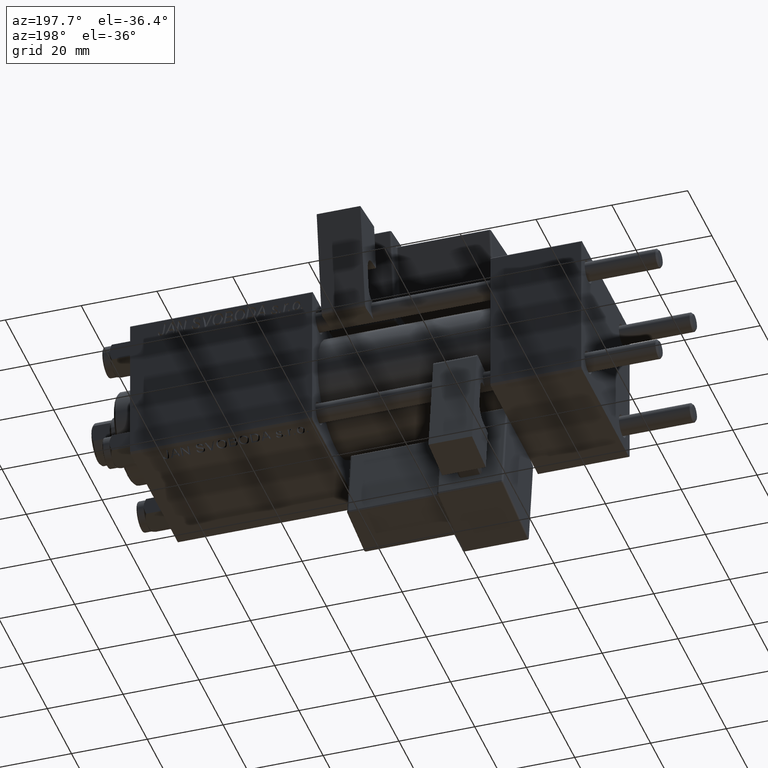
[diagram: clean part render]
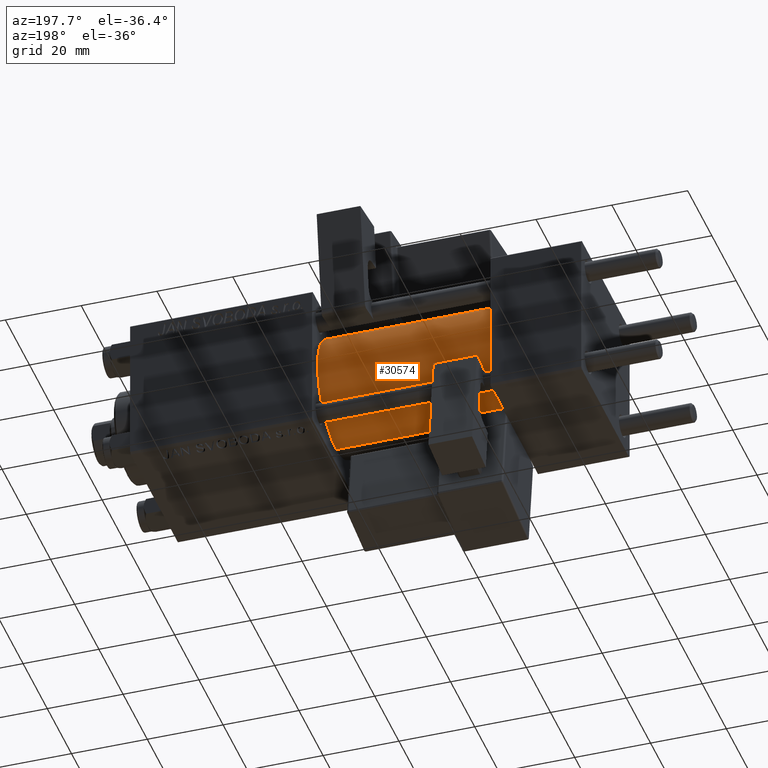
[diagram: same view with one face highlighted and labeled with its STEP entity id]
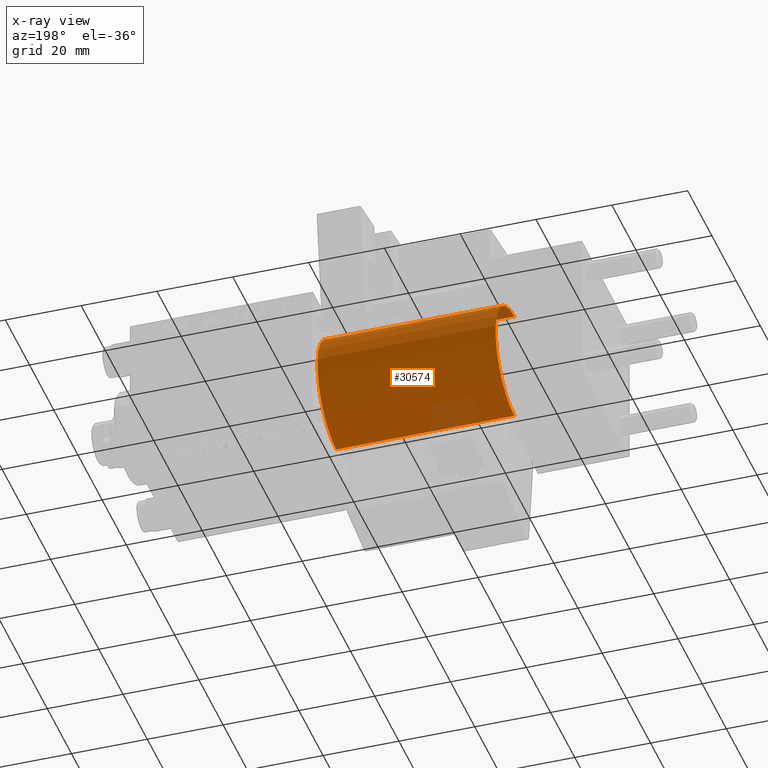
[diagram: x-ray of the same camera — body ghosted, the highlighted face saturated]
A machine part, auxiliary view. The second image highlights one B-rep face of the part: STEP entity #30574.
The next image is the same camera in x-ray: the body ghosted, the highlighted face saturated — about 7% of this face is hidden behind the body in this view.
In plain terms, the highlighted cylindrical surface (partial cylindrical patch) has radius 15.5 mm, axis along (-1, -0, -0).
Its self-contained STEP definition (entity closure, byte-faithful):
#2275 = CARTESIAN_POINT ( 'NONE',  ( 24.00000000000000000, 1.898202538678397557E-15, -15.50000000000000000 ) ) ;
#3947 = CYLINDRICAL_SURFACE ( 'NONE', #29913, 15.50000000000000000 ) ;
#4018 = LINE ( 'NONE', #31125, #16579 ) ;
#4714 = ORIENTED_EDGE ( 'NONE', *, *, #36064, .F. ) ;
#4984 = ORIENTED_EDGE ( 'NONE', *, *, #22923, .T. ) ;
#5713 = CIRCLE ( 'NONE', #35108, 15.50000000000000000 ) ;
#7157 = DIRECTION ( 'NONE',  ( -1.000000000000000000, -0.000000000000000000, -0.000000000000000000 ) ) ;
#7903 = FACE_OUTER_BOUND ( 'NONE', #42665, .T. ) ;
#9263 = CARTESIAN_POINT ( 'NONE',  ( 24.00000000000000000, 0.000000000000000000, 15.50000000000000000 ) ) ;
#10044 = EDGE_CURVE ( 'NONE', #36591, #19663, #5713, .T. ) ;
#15218 = CARTESIAN_POINT ( 'NONE',  ( 24.00000000000000000, 0.000000000000000000, 0.000000000000000000 ) ) ;
#15663 = AXIS2_PLACEMENT_3D ( 'NONE', #37632, #37123, #29969 ) ;
#16579 = VECTOR ( 'NONE', #51411, 1000.000000000000000 ) ;
#19663 = VERTEX_POINT ( 'NONE', #9263 ) ;
#20001 = DIRECTION ( 'NONE',  ( 0.000000000000000000, 0.000000000000000000, 1.000000000000000000 ) ) ;
#22686 = LINE ( 'NONE', #31099, #44715 ) ;
#22923 = EDGE_CURVE ( 'NONE', #49188, #36591, #22686, .T. ) ;
#24147 = DIRECTION ( 'NONE',  ( 0.000000000000000000, 0.000000000000000000, 1.000000000000000000 ) ) ;
#24416 = VERTEX_POINT ( 'NONE', #31922 ) ;
#24475 = CARTESIAN_POINT ( 'NONE',  ( 71.00000000000001421, 0.000000000000000000, 0.000000000000000000 ) ) ;
#29913 = AXIS2_PLACEMENT_3D ( 'NONE', #24475, #40019, #20001 ) ;
#29969 = DIRECTION ( 'NONE',  ( 0.000000000000000000, 0.000000000000000000, -1.000000000000000000 ) ) ;
#30574 = ADVANCED_FACE ( 'NONE', ( #7903 ), #3947, .T. ) ;
#31099 = CARTESIAN_POINT ( 'NONE',  ( 71.00000000000001421, 1.898202538678397557E-15, -15.50000000000000000 ) ) ;
#31125 = CARTESIAN_POINT ( 'NONE',  ( 71.00000000000001421, 0.000000000000000000, 15.50000000000000000 ) ) ;
#31922 = CARTESIAN_POINT ( 'NONE',  ( 71.00000000000001421, 0.000000000000000000, 15.50000000000000000 ) ) ;
#35108 = AXIS2_PLACEMENT_3D ( 'NONE', #15218, #48649, #24147 ) ;
#36064 = EDGE_CURVE ( 'NONE', #49188, #24416, #36728, .T. ) ;
#36591 = VERTEX_POINT ( 'NONE', #2275 ) ;
#36728 = CIRCLE ( 'NONE', #15663, 15.50000000000000000 ) ;
#36798 = ORIENTED_EDGE ( 'NONE', *, *, #37255, .F. ) ;
#37123 = DIRECTION ( 'NONE',  ( 1.000000000000000000, 0.000000000000000000, 0.000000000000000000 ) ) ;
#37255 = EDGE_CURVE ( 'NONE', #24416, #19663, #4018, .T. ) ;
#37632 = CARTESIAN_POINT ( 'NONE',  ( 71.00000000000001421, 0.000000000000000000, 0.000000000000000000 ) ) ;
#40019 = DIRECTION ( 'NONE',  ( -1.000000000000000000, -0.000000000000000000, -0.000000000000000000 ) ) ;
#42665 = EDGE_LOOP ( 'NONE', ( #4714, #4984, #46542, #36798 ) ) ;
#44715 = VECTOR ( 'NONE', #7157, 1000.000000000000000 ) ;
#46542 = ORIENTED_EDGE ( 'NONE', *, *, #10044, .T. ) ;
#48649 = DIRECTION ( 'NONE',  ( 1.000000000000000000, 0.000000000000000000, 0.000000000000000000 ) ) ;
#49188 = VERTEX_POINT ( 'NONE', #51219 ) ;
#51219 = CARTESIAN_POINT ( 'NONE',  ( 71.00000000000001421, 1.898202538678397557E-15, -15.50000000000000000 ) ) ;
#51411 = DIRECTION ( 'NONE',  ( -1.000000000000000000, -0.000000000000000000, -0.000000000000000000 ) ) ;